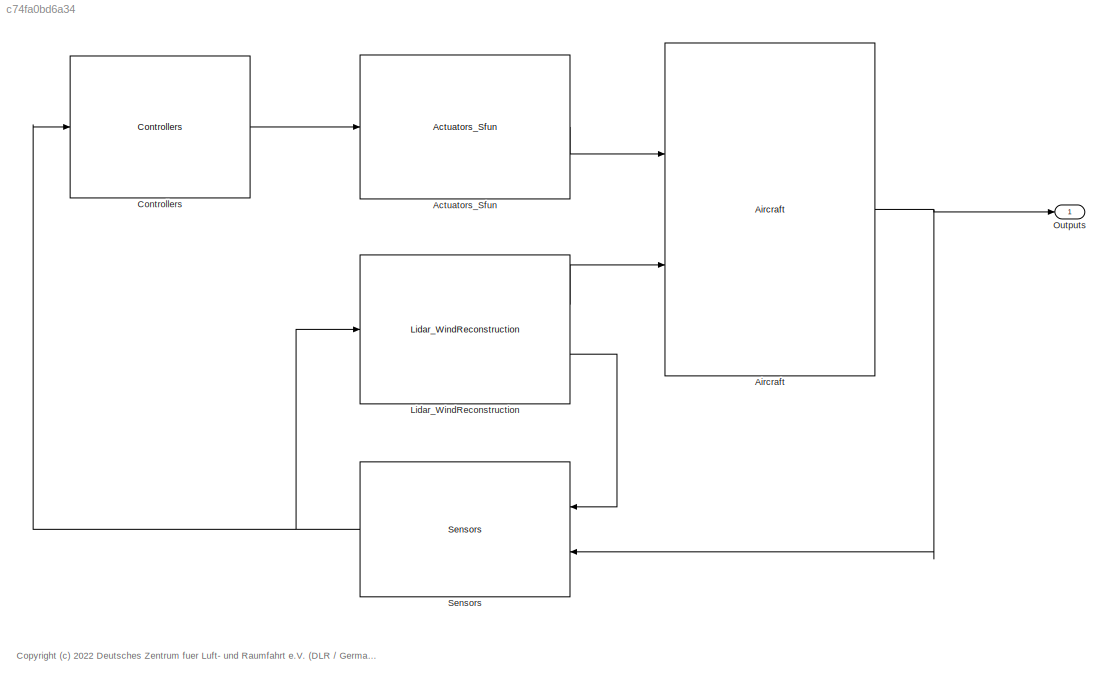
MODEL slx_c74fa0bd6a34
KIND model
CONFIG AbsTol = auto
CONFIG EnableMultiTasking = off
CONFIG FixedStep = SimConfig.SampleTime
CONFIG MaxStep = auto
CONFIG MinStep = auto
CONFIG RelTol = 1e-3
CONFIG SampleTimeConstraint = Unconstrained
CONFIG Solver = ode5
CONFIG SolverName = ode5
CONFIG StartTime = 0.0
CONFIG StopTime = SimConfig.EndTime
BLOCK [Reference] Actuators_Sfun  REF=Actuators_Block/Actuators_Sfun
  Ports = [1, 1]
  SourceBlock = Actuators_Block/Actuators_Sfun
  SourceType = SubSystem
BLOCK [Reference] Aircraft  REF=lib_Sim_CRM/Aircraft
  Ports = [2, 1]
  SourceBlock = lib_Sim_CRM/Aircraft
  SourceType = Aircraft model
BLOCK [Reference] Controllers  REF=Controllers/Controllers
  Ports = [1, 1]
  SourceBlock = Controllers/Controllers
  SourceType = SubSystem
BLOCK [Reference] Lidar_WindReconstruction  REF=Lidar_WindReconstruction/Lidar_WindReconstruction
  Ports = [1, 2]
  SourceBlock = Lidar_WindReconstruction/Lidar_WindReconstruction
  SourceType = SubSystem
BLOCK [Outport] Outputs
  IconDisplay = Port number
BLOCK [Reference] Sensors  REF=Sensors_Block/Sensors
  Ports = [2, 1]
  SourceBlock = Sensors_Block/Sensors
  SourceType = SubSystem
ANNOTATION (root): <copyright redacted>
LINE Actuators_Sfun:1 -> Aircraft:1
NET Aircraft:1 -> Outputs:1, Sensors:2
LINE Controllers:1 -> Actuators_Sfun:1
LINE Lidar_WindReconstruction:1 -> Aircraft:2
LINE Lidar_WindReconstruction:2 -> Sensors:1
NET Sensors:1 -> Controllers:1, Lidar_WindReconstruction:1
note: NET lines group one-source signal fan-out (src -> all destinations, sorted); 1:1 wires keep LINE
